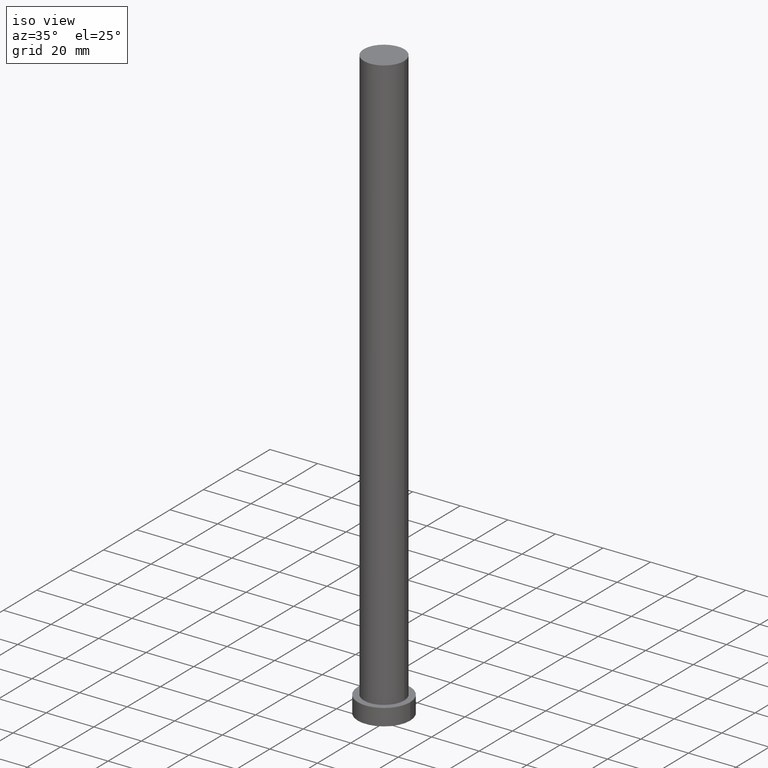
[diagram: clean part render]
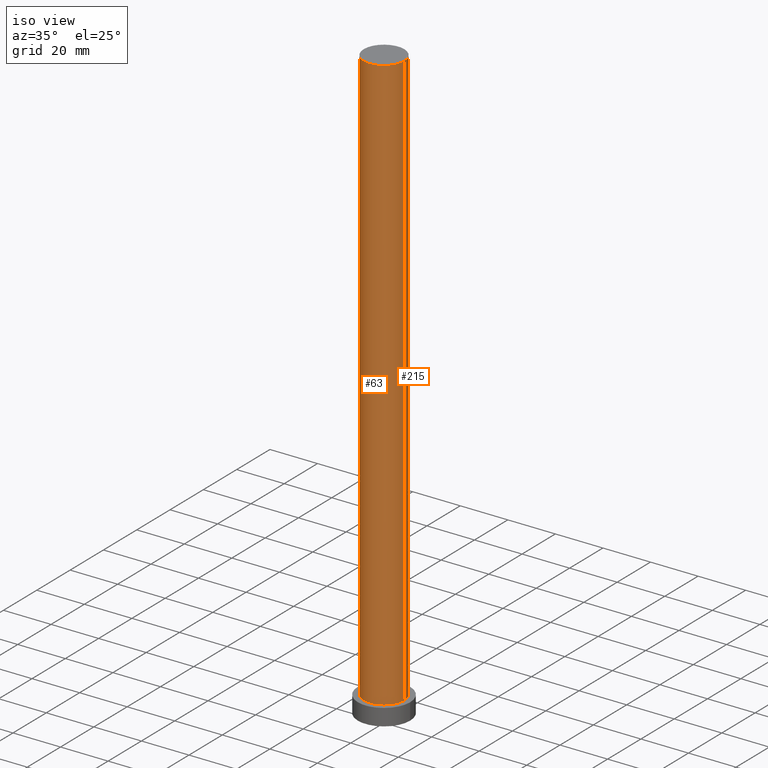
[diagram: same view with one multi-face feature highlighted, each face labeled with its STEP entity id]
A machine part, iso view. The highlighted faces form ONE feature: a constant-radius fillet chain: 2 tangent blend faces with common blend radius 8.5 mm. The faces share edges in the B-rep.
Their STEP definitions:
[1] entity #215 (Cylinder):
#1 = CIRCLE ( 'NONE', #52, 8.500000000000000000 ) ;
#5 = VERTEX_POINT ( 'NONE', #30 ) ;
#12 = DIRECTION ( 'NONE',  ( -0.000000000000000000, -0.000000000000000000, -1.000000000000000000 ) ) ;
#19 = ORIENTED_EDGE ( 'NONE', *, *, #191, .F. ) ;
#20 = EDGE_CURVE ( 'NONE', #5, #92, #1, .T. ) ;
#29 = CARTESIAN_POINT ( 'NONE',  ( -8.500000000000000000, 0.000000000000000000, 7.000000000000000000 ) ) ;
#30 = CARTESIAN_POINT ( 'NONE',  ( 8.500000000000000000, 1.040949779275250140E-15, 7.000000000000000000 ) ) ;
#31 = CARTESIAN_POINT ( 'NONE',  ( 0.000000000000000000, 0.000000000000000000, 250.0000000000000000 ) ) ;
#36 = DIRECTION ( 'NONE',  ( 1.000000000000000000, 0.000000000000000000, 0.000000000000000000 ) ) ;
#41 = CARTESIAN_POINT ( 'NONE',  ( -8.500000000000000000, 0.000000000000000000, 250.0000000000000000 ) ) ;
#45 = DIRECTION ( 'NONE',  ( 0.000000000000000000, 0.000000000000000000, 1.000000000000000000 ) ) ;
#50 = EDGE_LOOP ( 'NONE', ( #19, #70, #179, #91 ) ) ;
#52 = AXIS2_PLACEMENT_3D ( 'NONE', #98, #132, #36 ) ;
#53 = LINE ( 'NONE', #116, #143 ) ;
#70 = ORIENTED_EDGE ( 'NONE', *, *, #245, .T. ) ;
#91 = ORIENTED_EDGE ( 'NONE', *, *, #219, .F. ) ;
#92 = VERTEX_POINT ( 'NONE', #29 ) ;
#95 = VERTEX_POINT ( 'NONE', #200 ) ;
#98 = CARTESIAN_POINT ( 'NONE',  ( 0.000000000000000000, 0.000000000000000000, 7.000000000000000000 ) ) ;
#104 = DIRECTION ( 'NONE',  ( -0.000000000000000000, -0.000000000000000000, -1.000000000000000000 ) ) ;
#107 = CARTESIAN_POINT ( 'NONE',  ( 0.000000000000000000, 0.000000000000000000, 250.0000000000000000 ) ) ;
#116 = CARTESIAN_POINT ( 'NONE',  ( 8.500000000000000000, 1.040949779275250140E-15, 250.0000000000000000 ) ) ;
#132 = DIRECTION ( 'NONE',  ( 0.000000000000000000, 0.000000000000000000, 1.000000000000000000 ) ) ;
#136 = CIRCLE ( 'NONE', #229, 8.500000000000000000 ) ;
#143 = VECTOR ( 'NONE', #104, 1000.000000000000000 ) ;
#150 = DIRECTION ( 'NONE',  ( -0.000000000000000000, -0.000000000000000000, -1.000000000000000000 ) ) ;
#161 = VECTOR ( 'NONE', #150, 1000.000000000000000 ) ;
#174 = LINE ( 'NONE', #41, #161 ) ;
#176 = AXIS2_PLACEMENT_3D ( 'NONE', #31, #12, #196 ) ;
#179 = ORIENTED_EDGE ( 'NONE', *, *, #20, .T. ) ;
#181 = DIRECTION ( 'NONE',  ( 1.000000000000000000, 0.000000000000000000, 0.000000000000000000 ) ) ;
#191 = EDGE_CURVE ( 'NONE', #251, #95, #136, .T. ) ;
#193 = CARTESIAN_POINT ( 'NONE',  ( 8.500000000000000000, 1.040949779275250140E-15, 250.0000000000000000 ) ) ;
#196 = DIRECTION ( 'NONE',  ( -1.000000000000000000, 0.000000000000000000, 0.000000000000000000 ) ) ;
#200 = CARTESIAN_POINT ( 'NONE',  ( -8.500000000000000000, 0.000000000000000000, 250.0000000000000000 ) ) ;
#203 = CYLINDRICAL_SURFACE ( 'NONE', #176, 8.500000000000000000 ) ;
#215 = ADVANCED_FACE ( 'NONE', ( #227 ), #203, .T. ) ;
#219 = EDGE_CURVE ( 'NONE', #95, #92, #174, .T. ) ;
#227 = FACE_OUTER_BOUND ( 'NONE', #50, .T. ) ;
#229 = AXIS2_PLACEMENT_3D ( 'NONE', #107, #45, #181 ) ;
#245 = EDGE_CURVE ( 'NONE', #251, #5, #53, .T. ) ;
#251 = VERTEX_POINT ( 'NONE', #193 ) ;
[2] entity #63 (Cylinder):
#5 = VERTEX_POINT ( 'NONE', #30 ) ;
#17 = ORIENTED_EDGE ( 'NONE', *, *, #212, .T. ) ;
#22 = CARTESIAN_POINT ( 'NONE',  ( 0.000000000000000000, 0.000000000000000000, 250.0000000000000000 ) ) ;
#29 = CARTESIAN_POINT ( 'NONE',  ( -8.500000000000000000, 0.000000000000000000, 7.000000000000000000 ) ) ;
#30 = CARTESIAN_POINT ( 'NONE',  ( 8.500000000000000000, 1.040949779275250140E-15, 7.000000000000000000 ) ) ;
#41 = CARTESIAN_POINT ( 'NONE',  ( -8.500000000000000000, 0.000000000000000000, 250.0000000000000000 ) ) ;
#42 = AXIS2_PLACEMENT_3D ( 'NONE', #79, #160, #106 ) ;
#53 = LINE ( 'NONE', #116, #143 ) ;
#63 = ADVANCED_FACE ( 'NONE', ( #77 ), #198, .T. ) ;
#71 = DIRECTION ( 'NONE',  ( 1.000000000000000000, 0.000000000000000000, 0.000000000000000000 ) ) ;
#77 = FACE_OUTER_BOUND ( 'NONE', #249, .T. ) ;
#79 = CARTESIAN_POINT ( 'NONE',  ( 0.000000000000000000, 0.000000000000000000, 250.0000000000000000 ) ) ;
#86 = DIRECTION ( 'NONE',  ( 0.000000000000000000, 0.000000000000000000, 1.000000000000000000 ) ) ;
#92 = VERTEX_POINT ( 'NONE', #29 ) ;
#95 = VERTEX_POINT ( 'NONE', #200 ) ;
#104 = DIRECTION ( 'NONE',  ( -0.000000000000000000, -0.000000000000000000, -1.000000000000000000 ) ) ;
#106 = DIRECTION ( 'NONE',  ( -1.000000000000000000, 0.000000000000000000, 0.000000000000000000 ) ) ;
#116 = CARTESIAN_POINT ( 'NONE',  ( 8.500000000000000000, 1.040949779275250140E-15, 250.0000000000000000 ) ) ;
#125 = ORIENTED_EDGE ( 'NONE', *, *, #219, .T. ) ;
#139 = DIRECTION ( 'NONE',  ( 1.000000000000000000, 0.000000000000000000, 0.000000000000000000 ) ) ;
#143 = VECTOR ( 'NONE', #104, 1000.000000000000000 ) ;
#150 = DIRECTION ( 'NONE',  ( -0.000000000000000000, -0.000000000000000000, -1.000000000000000000 ) ) ;
#160 = DIRECTION ( 'NONE',  ( -0.000000000000000000, -0.000000000000000000, -1.000000000000000000 ) ) ;
#161 = VECTOR ( 'NONE', #150, 1000.000000000000000 ) ;
#174 = LINE ( 'NONE', #41, #161 ) ;
#183 = ORIENTED_EDGE ( 'NONE', *, *, #245, .F. ) ;
#193 = CARTESIAN_POINT ( 'NONE',  ( 8.500000000000000000, 1.040949779275250140E-15, 250.0000000000000000 ) ) ;
#194 = AXIS2_PLACEMENT_3D ( 'NONE', #22, #252, #71 ) ;
#197 = AXIS2_PLACEMENT_3D ( 'NONE', #242, #86, #139 ) ;
#198 = CYLINDRICAL_SURFACE ( 'NONE', #42, 8.500000000000000000 ) ;
#200 = CARTESIAN_POINT ( 'NONE',  ( -8.500000000000000000, 0.000000000000000000, 250.0000000000000000 ) ) ;
#212 = EDGE_CURVE ( 'NONE', #92, #5, #236, .T. ) ;
#219 = EDGE_CURVE ( 'NONE', #95, #92, #174, .T. ) ;
#236 = CIRCLE ( 'NONE', #197, 8.500000000000000000 ) ;
#237 = ORIENTED_EDGE ( 'NONE', *, *, #254, .F. ) ;
#240 = CIRCLE ( 'NONE', #194, 8.500000000000000000 ) ;
#242 = CARTESIAN_POINT ( 'NONE',  ( 0.000000000000000000, 0.000000000000000000, 7.000000000000000000 ) ) ;
#245 = EDGE_CURVE ( 'NONE', #251, #5, #53, .T. ) ;
#249 = EDGE_LOOP ( 'NONE', ( #183, #237, #125, #17 ) ) ;
#251 = VERTEX_POINT ( 'NONE', #193 ) ;
#252 = DIRECTION ( 'NONE',  ( 0.000000000000000000, 0.000000000000000000, 1.000000000000000000 ) ) ;
#254 = EDGE_CURVE ( 'NONE', #95, #251, #240, .T. ) ;